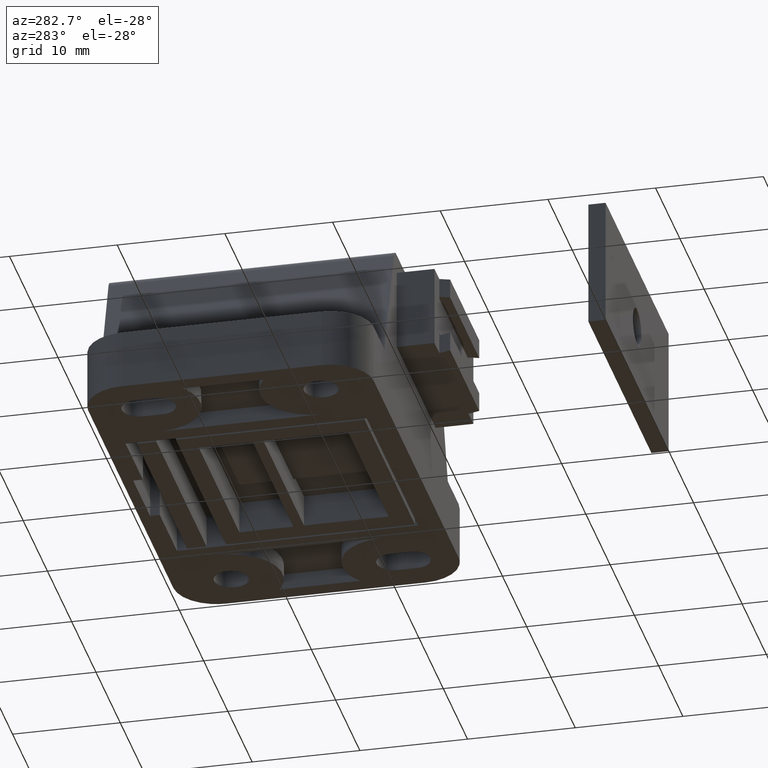
[diagram: clean part render]
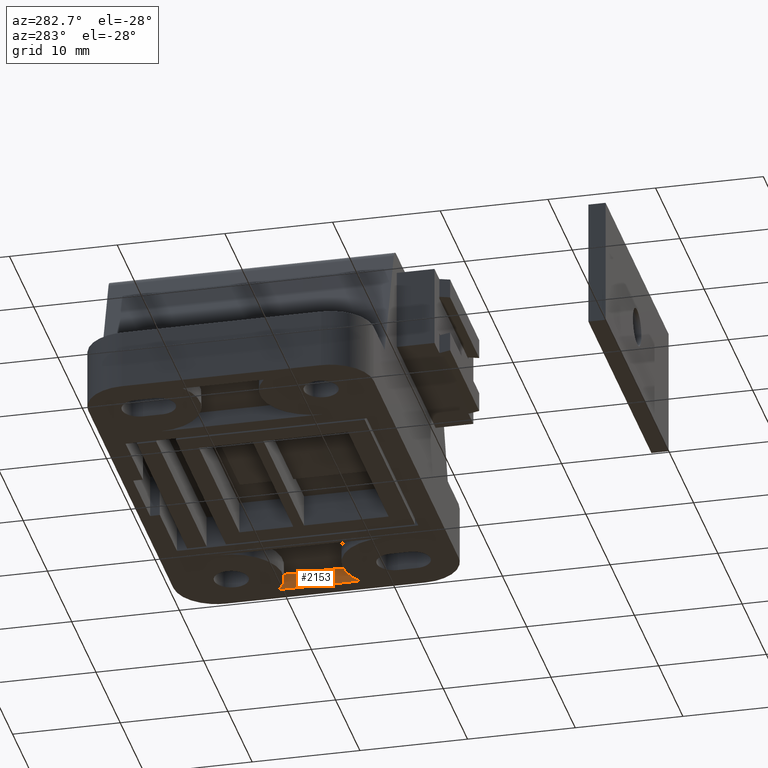
[diagram: same view with one face highlighted and labeled with its STEP entity id]
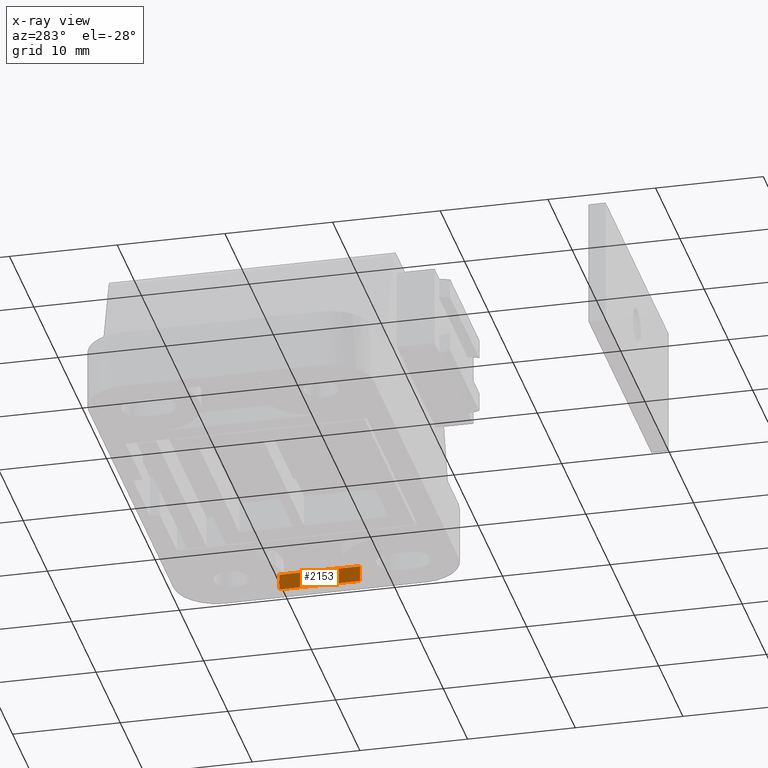
[diagram: x-ray of the same camera — body ghosted, the highlighted face saturated]
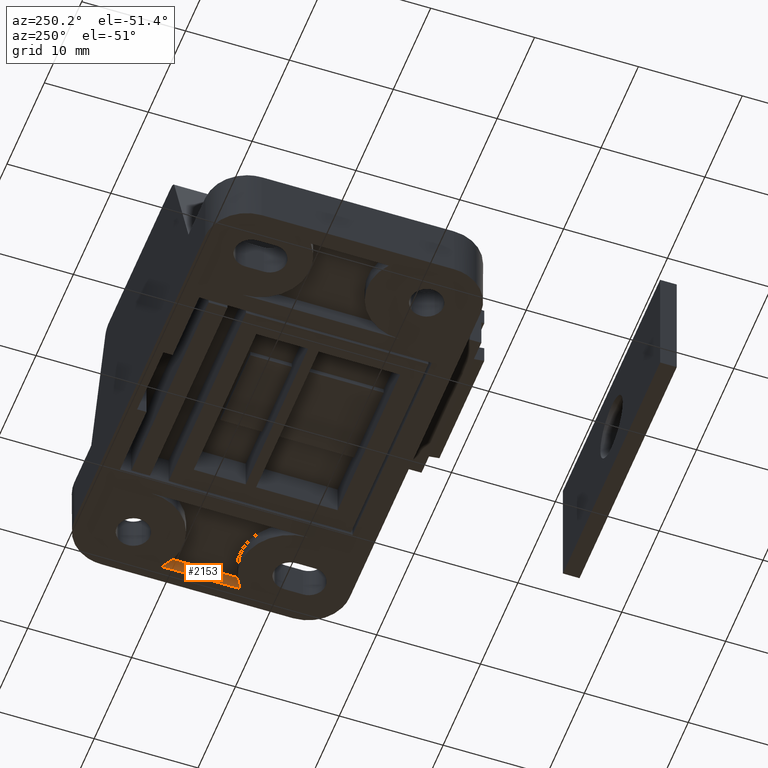
[diagram: same view with one face highlighted and labeled with its STEP entity id]
A machine part, auxiliary view. The second image highlights one B-rep face of the part: STEP entity #2153.
The next image is the same camera in x-ray: the body ghosted, the highlighted face saturated — about 0% of this face is hidden behind the body in this view.
A second angle (auxiliary view) of the same face is appended — the face is thin or edge-on in the first view.
In plain terms, the highlighted face is a freeform B-spline surface patch.
Its self-contained STEP definition (entity closure, byte-faithful):
#2004=CARTESIAN_POINT('',(19.899998000000000,-16.806507000000000,1.499999999999946));
#2005=VERTEX_POINT('',#2004);
#2032=CARTESIAN_POINT('',(19.899998000000000,-9.293499000000001,1.499999999999946));
#2033=VERTEX_POINT('',#2032);
#2052=CARTESIAN_POINT('',(19.899998000000000,-16.806507000000000,1.499999999999946));
#2053=CARTESIAN_POINT('',(19.899998000000000,-9.293499000000001,1.499999999999946));
#2054=QUASI_UNIFORM_CURVE('',1,(#2052,#2053),.UNSPECIFIED.,.F.,.U.);
#2055=EDGE_CURVE('',#2005,#2033,#2054,.T.);
#2102=CARTESIAN_POINT('',(19.899998000000000,-9.293499000000001,0.0));
#2103=VERTEX_POINT('',#2102);
#2122=CARTESIAN_POINT('',(19.899998000000000,-9.293499000000001,1.499999999999946));
#2123=CARTESIAN_POINT('',(19.899998000000000,-9.293499000000001,0.0));
#2124=QUASI_UNIFORM_CURVE('',1,(#2122,#2123),.UNSPECIFIED.,.F.,.U.);
#2125=EDGE_CURVE('',#2033,#2103,#2124,.T.);
#2132=CARTESIAN_POINT('',(19.899998000000000,-17.181781735038339,-0.074924997092706));
#2133=CARTESIAN_POINT('',(19.899998000000000,-17.181781735038339,1.574925037325788));
#2134=CARTESIAN_POINT('',(19.899998000000000,-8.918224063447092,-0.074924997092706));
#2135=CARTESIAN_POINT('',(19.899998000000000,-8.918224063447092,1.574925037325788));
#2136=B_SPLINE_SURFACE_WITH_KNOTS('',1,1,((#2132,#2134),(#2133,#2135)),.UNSPECIFIED.,.F.,.F.,.U.,(2,2),(2,2),(0.041708334948495,0.958291687403247),(0.0,8.263557671591244),.UNSPECIFIED.);
#2137=CARTESIAN_POINT('',(19.899998000000000,-16.806507000000000,0.0));
#2138=VERTEX_POINT('',#2137);
#2139=CARTESIAN_POINT('',(19.899998000000000,-16.806507000000000,0.0));
#2140=CARTESIAN_POINT('',(19.899998000000000,-9.293499000000001,0.0));
#2141=QUASI_UNIFORM_CURVE('',1,(#2139,#2140),.UNSPECIFIED.,.F.,.U.);
#2142=EDGE_CURVE('',#2138,#2103,#2141,.T.);
#2143=ORIENTED_EDGE('',*,*,#2142,.F.);
#2144=CARTESIAN_POINT('',(19.899998000000000,-16.806507000000000,1.499999999999946));
#2145=CARTESIAN_POINT('',(19.899998000000000,-16.806507000000000,0.0));
#2146=QUASI_UNIFORM_CURVE('',1,(#2144,#2145),.UNSPECIFIED.,.F.,.U.);
#2147=EDGE_CURVE('',#2005,#2138,#2146,.T.);
#2148=ORIENTED_EDGE('',*,*,#2147,.F.);
#2149=ORIENTED_EDGE('',*,*,#2055,.T.);
#2150=ORIENTED_EDGE('',*,*,#2125,.T.);
#2151=EDGE_LOOP('',(#2143,#2148,#2149,#2150));
#2152=FACE_OUTER_BOUND('',#2151,.T.);
#2153=ADVANCED_FACE('',(#2152),#2136,.T.);